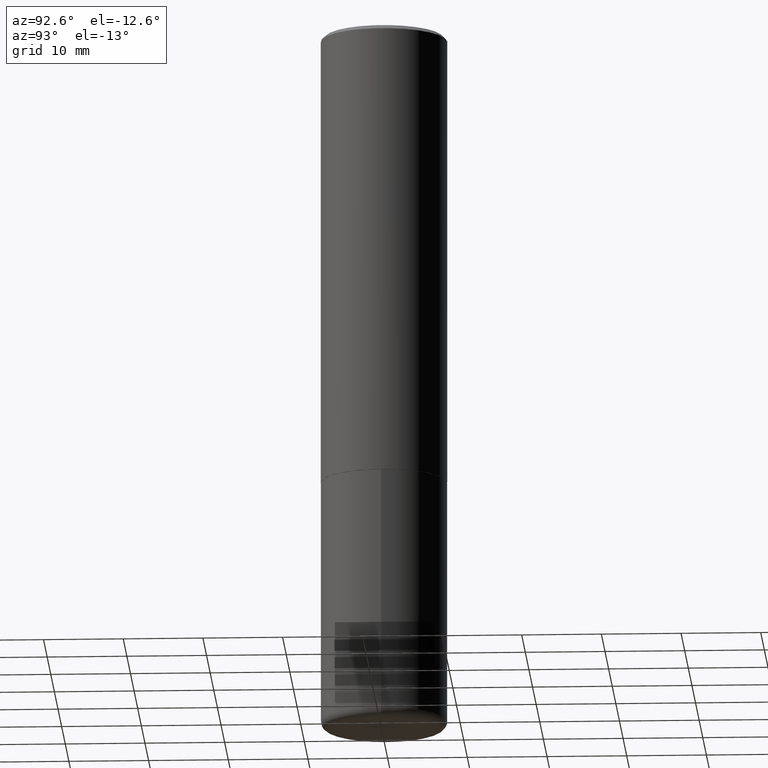
[diagram: clean part render]
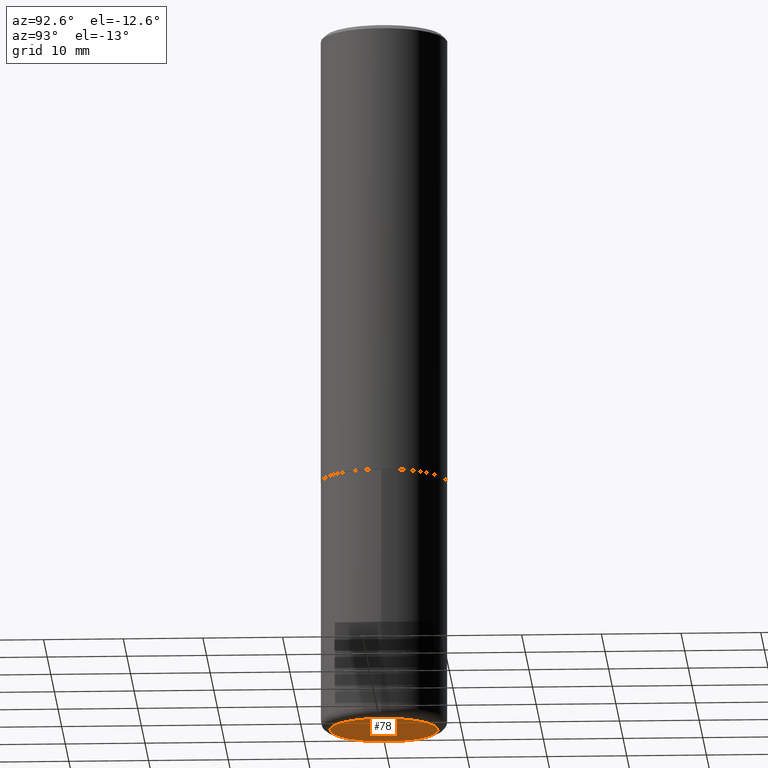
[diagram: same view with one face highlighted and labeled with its STEP entity id]
A machine part, auxiliary view. The second image highlights one B-rep face of the part: STEP entity #78.
In plain terms, the highlighted planar face has unit normal (0, -0, -1).
Its self-contained STEP definition (entity closure, byte-faithful):
#17 = EDGE_CURVE ( 'NONE', #377, #379, #145, .T. ) ;
#78 = ADVANCED_FACE ( 'NONE', ( #345 ), #378, .T. ) ;
#89 = DIRECTION ( 'NONE',  ( 2.438088387897960049E-29, -3.491481338843145188E-15, -1.000000000000000000 ) ) ;
#92 = DIRECTION ( 'NONE',  ( 1.000000000000000000, -6.982962677686269077E-15, 0.000000000000000000 ) ) ;
#127 = CARTESIAN_POINT ( 'NONE',  ( 8.559140821647976968E-29, -1.222018468595100934E-14, -3.500000000000000000 ) ) ;
#132 = CARTESIAN_POINT ( 'NONE',  ( -0.2675000000000000155, -1.008105242212274537E-14, -3.500000000000000000 ) ) ;
#145 = CIRCLE ( 'NONE', #257, 0.2675000000000000155 ) ;
#148 = ORIENTED_EDGE ( 'NONE', *, *, #17, .F. ) ;
#150 = ORIENTED_EDGE ( 'NONE', *, *, #186, .F. ) ;
#156 = CARTESIAN_POINT ( 'NONE',  ( 0.2675000000000000155, -1.408812720223208600E-14, -3.500000000000000000 ) ) ;
#185 = AXIS2_PLACEMENT_3D ( 'NONE', #283, #89, #316 ) ;
#186 = EDGE_CURVE ( 'NONE', #379, #377, #230, .T. ) ;
#230 = CIRCLE ( 'NONE', #389, 0.2675000000000000155 ) ;
#257 = AXIS2_PLACEMENT_3D ( 'NONE', #337, #279, #412 ) ;
#279 = DIRECTION ( 'NONE',  ( -2.445468806185136597E-29, 3.491481338843145583E-15, 1.000000000000000000 ) ) ;
#283 = CARTESIAN_POINT ( 'NONE',  ( 8.559140821647976968E-29, -1.222018468595100934E-14, -3.500000000000000000 ) ) ;
#316 = DIRECTION ( 'NONE',  ( -1.000000000000000000, 6.982962677686265922E-15, -4.876176775795935793E-29 ) ) ;
#337 = CARTESIAN_POINT ( 'NONE',  ( 8.559140821647976968E-29, -1.222018468595100934E-14, -3.500000000000000000 ) ) ;
#345 = FACE_OUTER_BOUND ( 'NONE', #366, .T. ) ;
#366 = EDGE_LOOP ( 'NONE', ( #148, #150 ) ) ;
#377 = VERTEX_POINT ( 'NONE', #156 ) ;
#378 = PLANE ( 'NONE',  #185 ) ;
#379 = VERTEX_POINT ( 'NONE', #132 ) ;
#388 = DIRECTION ( 'NONE',  ( -2.445468806185136597E-29, 3.491481338843145583E-15, 1.000000000000000000 ) ) ;
#389 = AXIS2_PLACEMENT_3D ( 'NONE', #127, #388, #92 ) ;
#412 = DIRECTION ( 'NONE',  ( 1.000000000000000000, -6.982962677686269077E-15, 0.000000000000000000 ) ) ;